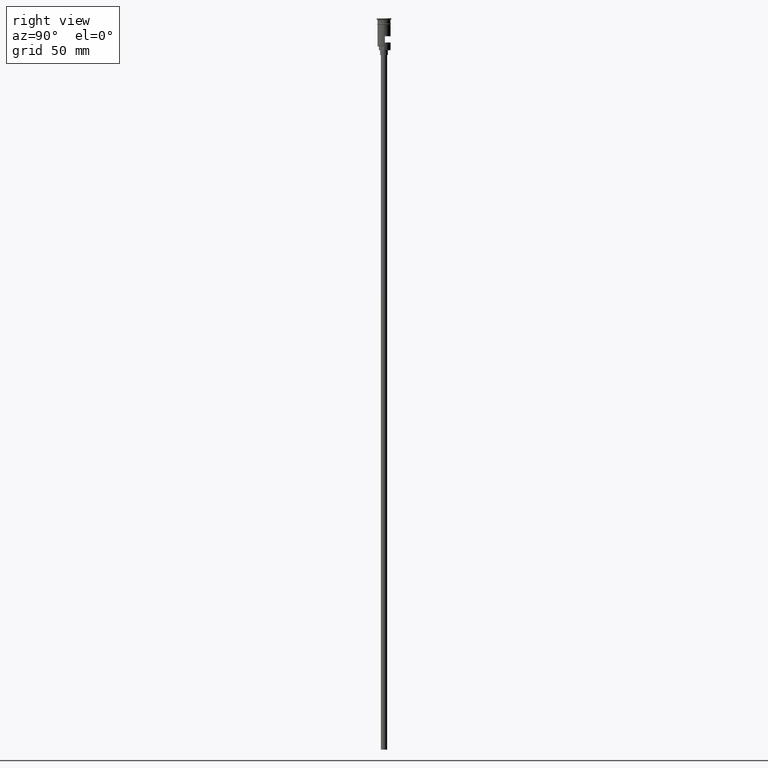
[diagram: clean part render]
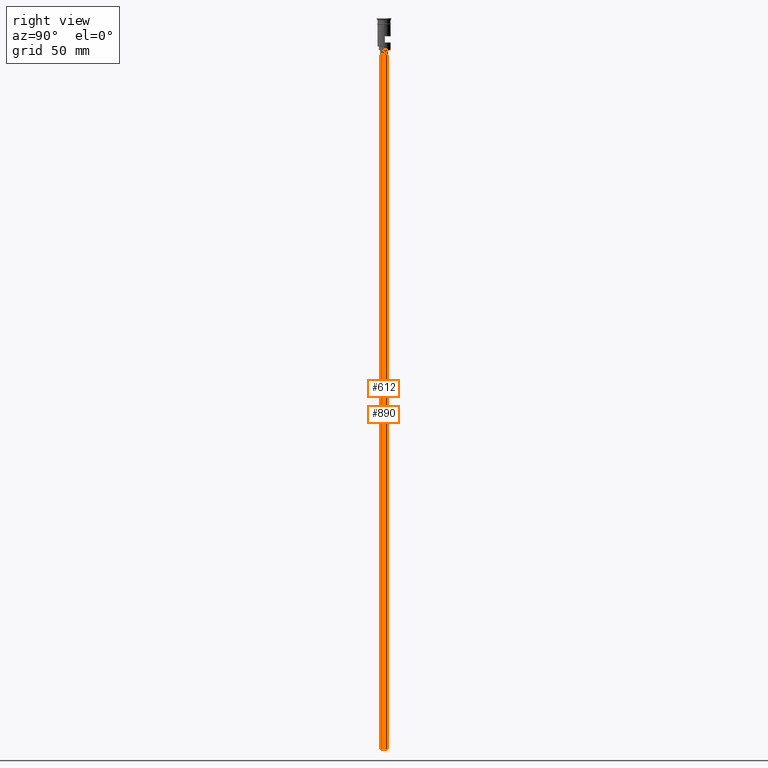
[diagram: same view with one multi-face feature highlighted, each face labeled with its STEP entity id]
A machine part, right view. The highlighted faces form ONE feature: a constant-radius fillet chain: 2 tangent blend faces with common blend radius 2 mm. The faces share edges in the B-rep.
Their STEP definitions:
[1] entity #612 (Cylinder):
#16 = VERTEX_POINT ( 'NONE', #630 ) ;
#23 = DIRECTION ( 'NONE',  ( -0.000000000000000000, -0.000000000000000000, 1.000000000000000000 ) ) ;
#183 = AXIS2_PLACEMENT_3D ( 'NONE', #546, #310, #815 ) ;
#225 = EDGE_CURVE ( 'NONE', #16, #692, #1582, .T. ) ;
#255 = ORIENTED_EDGE ( 'NONE', *, *, #225, .T. ) ;
#297 = CIRCLE ( 'NONE', #183, 2.000000000000000000 ) ;
#310 = DIRECTION ( 'NONE',  ( 0.000000000000000000, 0.000000000000000000, -1.000000000000000000 ) ) ;
#327 = CARTESIAN_POINT ( 'NONE',  ( 2.000000000000000000, 0.000000000000000000, -23.49999999999999645 ) ) ;
#334 = CARTESIAN_POINT ( 'NONE',  ( -2.000000000000000000, 2.449293598294706414E-16, -470.5000000000000568 ) ) ;
#350 = AXIS2_PLACEMENT_3D ( 'NONE', #353, #1350, #462 ) ;
#353 = CARTESIAN_POINT ( 'NONE',  ( 0.000000000000000000, 0.000000000000000000, -23.49999999999999645 ) ) ;
#364 = LINE ( 'NONE', #628, #636 ) ;
#373 = AXIS2_PLACEMENT_3D ( 'NONE', #1337, #1324, #951 ) ;
#441 = ORIENTED_EDGE ( 'NONE', *, *, #757, .T. ) ;
#453 = CYLINDRICAL_SURFACE ( 'NONE', #373, 2.000000000000000000 ) ;
#461 = FACE_OUTER_BOUND ( 'NONE', #1252, .T. ) ;
#462 = DIRECTION ( 'NONE',  ( -1.000000000000000000, 0.000000000000000000, 0.000000000000000000 ) ) ;
#542 = LINE ( 'NONE', #1168, #1466 ) ;
#546 = CARTESIAN_POINT ( 'NONE',  ( 0.000000000000000000, 0.000000000000000000, -470.5000000000000568 ) ) ;
#593 = EDGE_CURVE ( 'NONE', #1093, #1451, #297, .T. ) ;
#612 = ADVANCED_FACE ( 'NONE', ( #461 ), #453, .T. ) ;
#628 = CARTESIAN_POINT ( 'NONE',  ( -2.000000000000000000, 2.449293598294706414E-16, -470.5000000000000568 ) ) ;
#630 = CARTESIAN_POINT ( 'NONE',  ( -2.000000000000000000, 2.449293598294706414E-16, -23.49999999999999645 ) ) ;
#636 = VECTOR ( 'NONE', #23, 1000.000000000000000 ) ;
#692 = VERTEX_POINT ( 'NONE', #327 ) ;
#757 = EDGE_CURVE ( 'NONE', #1093, #16, #364, .T. ) ;
#815 = DIRECTION ( 'NONE',  ( -1.000000000000000000, 0.000000000000000000, 0.000000000000000000 ) ) ;
#870 = ORIENTED_EDGE ( 'NONE', *, *, #593, .F. ) ;
#951 = DIRECTION ( 'NONE',  ( 1.000000000000000000, 0.000000000000000000, 0.000000000000000000 ) ) ;
#1038 = DIRECTION ( 'NONE',  ( -0.000000000000000000, -0.000000000000000000, 1.000000000000000000 ) ) ;
#1093 = VERTEX_POINT ( 'NONE', #334 ) ;
#1168 = CARTESIAN_POINT ( 'NONE',  ( 2.000000000000000000, 0.000000000000000000, -470.5000000000000568 ) ) ;
#1200 = CARTESIAN_POINT ( 'NONE',  ( 2.000000000000000000, 0.000000000000000000, -470.5000000000000568 ) ) ;
#1252 = EDGE_LOOP ( 'NONE', ( #870, #441, #255, #1290 ) ) ;
#1290 = ORIENTED_EDGE ( 'NONE', *, *, #1309, .F. ) ;
#1309 = EDGE_CURVE ( 'NONE', #1451, #692, #542, .T. ) ;
#1324 = DIRECTION ( 'NONE',  ( -0.000000000000000000, -0.000000000000000000, 1.000000000000000000 ) ) ;
#1337 = CARTESIAN_POINT ( 'NONE',  ( 0.000000000000000000, 0.000000000000000000, -470.5000000000000568 ) ) ;
#1350 = DIRECTION ( 'NONE',  ( 0.000000000000000000, 0.000000000000000000, -1.000000000000000000 ) ) ;
#1451 = VERTEX_POINT ( 'NONE', #1200 ) ;
#1466 = VECTOR ( 'NONE', #1038, 1000.000000000000000 ) ;
#1582 = CIRCLE ( 'NONE', #350, 2.000000000000000000 ) ;
[2] entity #890 (Cylinder):
#16 = VERTEX_POINT ( 'NONE', #630 ) ;
#23 = DIRECTION ( 'NONE',  ( -0.000000000000000000, -0.000000000000000000, 1.000000000000000000 ) ) ;
#106 = CIRCLE ( 'NONE', #1353, 2.000000000000000000 ) ;
#122 = CARTESIAN_POINT ( 'NONE',  ( 0.000000000000000000, 0.000000000000000000, -23.49999999999999645 ) ) ;
#186 = DIRECTION ( 'NONE',  ( 1.000000000000000000, 0.000000000000000000, 0.000000000000000000 ) ) ;
#208 = AXIS2_PLACEMENT_3D ( 'NONE', #404, #1528, #186 ) ;
#249 = CARTESIAN_POINT ( 'NONE',  ( 0.000000000000000000, 0.000000000000000000, -470.5000000000000568 ) ) ;
#327 = CARTESIAN_POINT ( 'NONE',  ( 2.000000000000000000, 0.000000000000000000, -23.49999999999999645 ) ) ;
#334 = CARTESIAN_POINT ( 'NONE',  ( -2.000000000000000000, 2.449293598294706414E-16, -470.5000000000000568 ) ) ;
#364 = LINE ( 'NONE', #628, #636 ) ;
#404 = CARTESIAN_POINT ( 'NONE',  ( 0.000000000000000000, 0.000000000000000000, -470.5000000000000568 ) ) ;
#542 = LINE ( 'NONE', #1168, #1466 ) ;
#602 = DIRECTION ( 'NONE',  ( -1.000000000000000000, 0.000000000000000000, 0.000000000000000000 ) ) ;
#613 = DIRECTION ( 'NONE',  ( -1.000000000000000000, 0.000000000000000000, 0.000000000000000000 ) ) ;
#628 = CARTESIAN_POINT ( 'NONE',  ( -2.000000000000000000, 2.449293598294706414E-16, -470.5000000000000568 ) ) ;
#630 = CARTESIAN_POINT ( 'NONE',  ( -2.000000000000000000, 2.449293598294706414E-16, -23.49999999999999645 ) ) ;
#636 = VECTOR ( 'NONE', #23, 1000.000000000000000 ) ;
#692 = VERTEX_POINT ( 'NONE', #327 ) ;
#724 = ORIENTED_EDGE ( 'NONE', *, *, #1130, .F. ) ;
#739 = EDGE_CURVE ( 'NONE', #692, #16, #106, .T. ) ;
#757 = EDGE_CURVE ( 'NONE', #1093, #16, #364, .T. ) ;
#834 = ORIENTED_EDGE ( 'NONE', *, *, #739, .T. ) ;
#853 = AXIS2_PLACEMENT_3D ( 'NONE', #249, #1108, #602 ) ;
#890 = ADVANCED_FACE ( 'NONE', ( #1017 ), #1288, .T. ) ;
#980 = DIRECTION ( 'NONE',  ( 0.000000000000000000, 0.000000000000000000, -1.000000000000000000 ) ) ;
#1017 = FACE_OUTER_BOUND ( 'NONE', #1176, .T. ) ;
#1038 = DIRECTION ( 'NONE',  ( -0.000000000000000000, -0.000000000000000000, 1.000000000000000000 ) ) ;
#1093 = VERTEX_POINT ( 'NONE', #334 ) ;
#1108 = DIRECTION ( 'NONE',  ( 0.000000000000000000, 0.000000000000000000, -1.000000000000000000 ) ) ;
#1130 = EDGE_CURVE ( 'NONE', #1451, #1093, #1514, .T. ) ;
#1168 = CARTESIAN_POINT ( 'NONE',  ( 2.000000000000000000, 0.000000000000000000, -470.5000000000000568 ) ) ;
#1176 = EDGE_LOOP ( 'NONE', ( #1603, #724, #1326, #834 ) ) ;
#1200 = CARTESIAN_POINT ( 'NONE',  ( 2.000000000000000000, 0.000000000000000000, -470.5000000000000568 ) ) ;
#1288 = CYLINDRICAL_SURFACE ( 'NONE', #208, 2.000000000000000000 ) ;
#1309 = EDGE_CURVE ( 'NONE', #1451, #692, #542, .T. ) ;
#1326 = ORIENTED_EDGE ( 'NONE', *, *, #1309, .T. ) ;
#1353 = AXIS2_PLACEMENT_3D ( 'NONE', #122, #980, #613 ) ;
#1451 = VERTEX_POINT ( 'NONE', #1200 ) ;
#1466 = VECTOR ( 'NONE', #1038, 1000.000000000000000 ) ;
#1514 = CIRCLE ( 'NONE', #853, 2.000000000000000000 ) ;
#1528 = DIRECTION ( 'NONE',  ( -0.000000000000000000, -0.000000000000000000, 1.000000000000000000 ) ) ;
#1603 = ORIENTED_EDGE ( 'NONE', *, *, #757, .F. ) ;